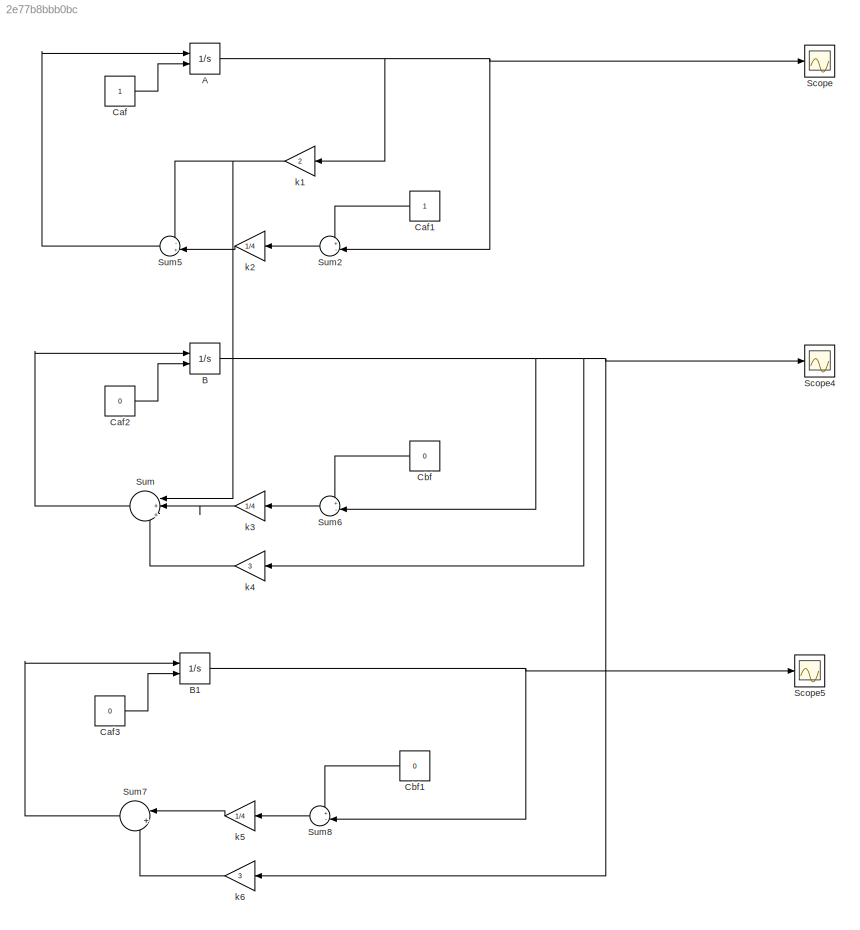
MODEL slx_2e77b8bbb0bc
KIND model
CONFIG AbsTol = auto
CONFIG EnableMultiTasking = off
CONFIG FixedStep = auto
CONFIG MaxStep = auto
CONFIG MinStep = auto
CONFIG RelTol = 1e-3
CONFIG SampleTimeConstraint = Unconstrained
CONFIG Solver = VariableStepAuto
CONFIG SolverName = VariableStepAuto
CONFIG StartTime = 0.0
CONFIG StopTime = 5
BLOCK [Integrator] A
  InitialConditionSource = external
  Ports = [2, 1]
BLOCK [Integrator] B
  InitialConditionSource = external
  Ports = [2, 1]
BLOCK [Integrator] B1
  InitialConditionSource = external
  Ports = [2, 1]
BLOCK [Constant] Caf
BLOCK [Constant] Caf1
BLOCK [Constant] Caf2
  Value = 0
BLOCK [Constant] Caf3
  Value = 0
BLOCK [Constant] Cbf
  Value = 0
BLOCK [Constant] Cbf1
  Value = 0
BLOCK [Scope] Scope
  Floating = off
  NumInputPorts = 1
  Ports = [1]
  ScopeSpecificationString = Simulink.scopes.TimeScopeBlockCfg('CurrentConfiguration', extmgr.ConfigurationSet(extmgr.Configuration('Core','General UI',true),extmgr.Configuration('Core','Source UI',true),extmgr.Configuration('Sources','WiredSimulink',true),extmgr.Configuration('Visuals','Time Domain',true,'SerializedDisplays',{struct('MinYLimReal','0.00001','MaxYLimReal','1.11111','YLabelReal','','MinYLimMag','0.00001','MaxYL...<+1348ch>
BLOCK [Scope] Scope4
  Floating = off
  NumInputPorts = 1
  Ports = [1]
  ScopeSpecificationString = Simulink.scopes.TimeScopeBlockCfg('CurrentConfiguration', extmgr.ConfigurationSet(extmgr.Configuration('Core','General UI',true),extmgr.Configuration('Core','Source UI',true),extmgr.Configuration('Sources','WiredSimulink',true,'DataLoggingVariableName','ScopeData4'),extmgr.Configuration('Visuals','Time Domain',true,'SerializedDisplays',{struct('MinYLimReal','-0.03591','MaxYLimReal','0.32322','YLab...<+1389ch>
BLOCK [Scope] Scope5
  Floating = off
  NumInputPorts = 1
  Ports = [1]
  ScopeSpecificationString = Simulink.scopes.TimeScopeBlockCfg('CurrentConfiguration', extmgr.ConfigurationSet(extmgr.Configuration('Core','General UI',true),extmgr.Configuration('Core','Source UI',true),extmgr.Configuration('Sources','WiredSimulink',true,'DataLoggingVariableName','ScopeData5'),extmgr.Configuration('Visuals','Time Domain',true,'SerializedDisplays',{struct('MinYLimReal','-0.10256','MaxYLimReal','0.92304','YLab...<+1390ch>
BLOCK [Sum] Sum
  Inputs = |+|+|-
  Ports = [3, 1]
BLOCK [Sum] Sum2
  Inputs = +-|
  Ports = [2, 1]
BLOCK [Sum] Sum5
  Inputs = -+|
  Ports = [2, 1]
BLOCK [Sum] Sum6
  Inputs = +-|
  Ports = [2, 1]
BLOCK [Sum] Sum7
  Inputs = |++
  Ports = [2, 1]
BLOCK [Sum] Sum8
  Inputs = +-|
  Ports = [2, 1]
BLOCK [Gain] k1
  Gain = 2
BLOCK [Gain] k2
  Gain = 1/4
BLOCK [Gain] k3
  Gain = 1/4
BLOCK [Gain] k4
  Gain = 3
BLOCK [Gain] k5
  Gain = 1/4
BLOCK [Gain] k6
  Gain = 3
NET A:1 -> Scope:1, Sum2:2, k1:1
NET B1:1 -> Scope5:1, Sum8:2
NET B:1 -> Scope4:1, Sum6:2, k4:1, k6:1
LINE Caf1:1 -> Sum2:1
LINE Caf2:1 -> B:2
LINE Caf3:1 -> B1:2
LINE Caf:1 -> A:2
LINE Cbf1:1 -> Sum8:1
LINE Cbf:1 -> Sum6:1
LINE Sum2:1 -> k2:1
LINE Sum5:1 -> A:1
LINE Sum6:1 -> k3:1
LINE Sum7:1 -> B1:1
LINE Sum8:1 -> k5:1
LINE Sum:1 -> B:1
NET k1:1 -> Sum5:1, Sum:1
LINE k2:1 -> Sum5:2
LINE k3:1 -> Sum:2
LINE k4:1 -> Sum:3
LINE k5:1 -> Sum7:1
LINE k6:1 -> Sum7:2
note: NET lines group one-source signal fan-out (src -> all destinations, sorted); 1:1 wires keep LINE
